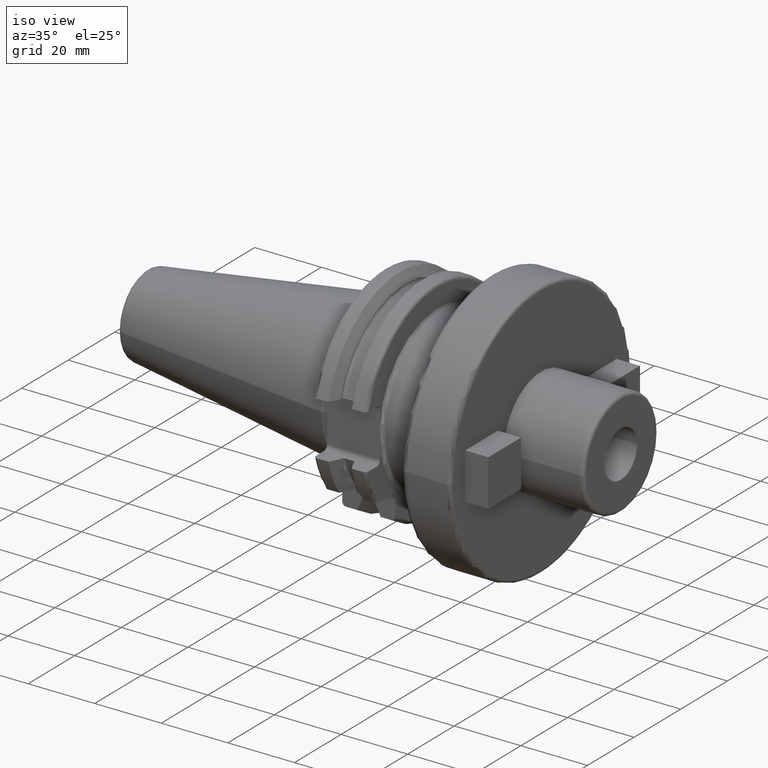
[diagram: clean part render]
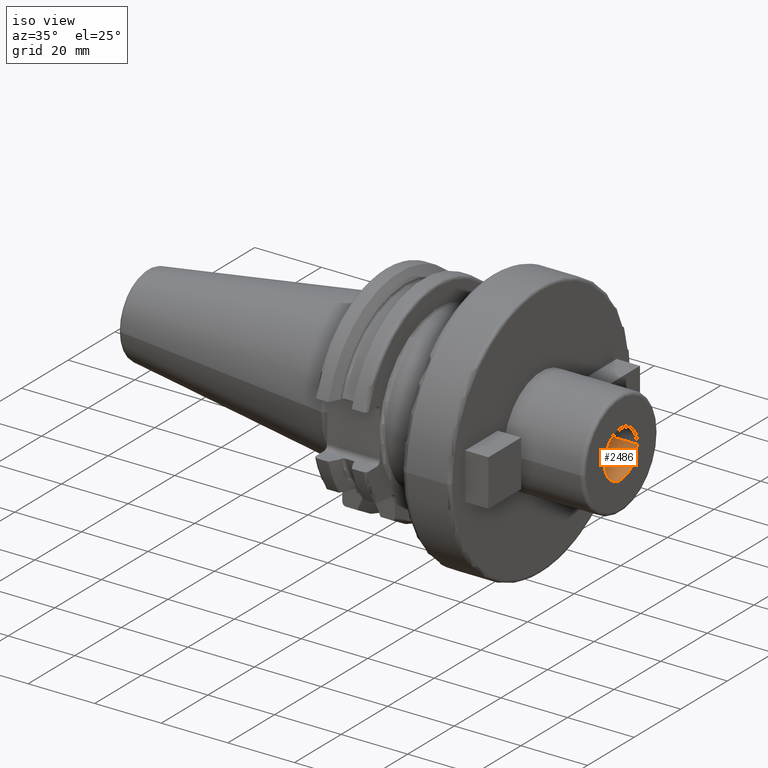
[diagram: same view with one face highlighted and labeled with its STEP entity id]
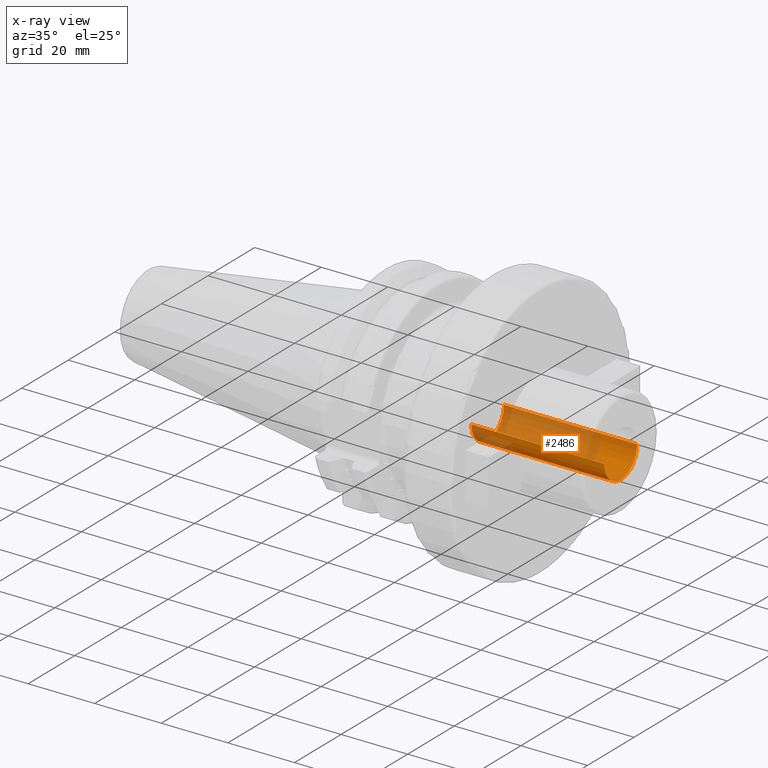
[diagram: x-ray of the same camera — body ghosted, the highlighted face saturated]
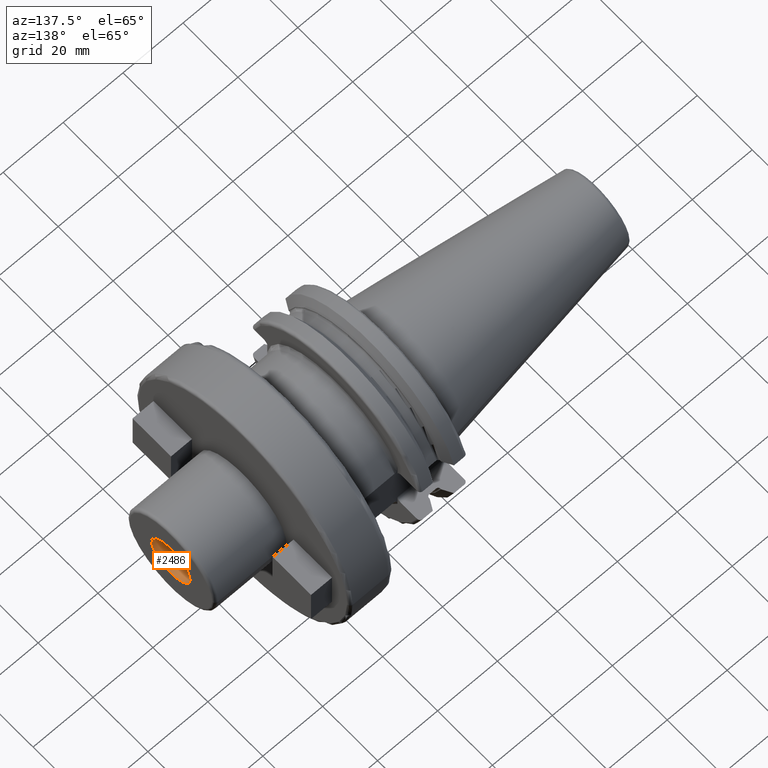
[diagram: same view with one face highlighted and labeled with its STEP entity id]
A machine part, iso view. The second image highlights one B-rep face of the part: STEP entity #2486.
The next image is the same camera in x-ray: the body ghosted, the highlighted face saturated — about 54% of this face is hidden behind the body in this view.
A second angle (auxiliary view) of the same face is appended — the face is thin or edge-on in the first view.
In plain terms, the highlighted cylindrical surface (edge-blend (fillet) strip) has radius 7 mm, axis along (1, 0, 0).
Its self-contained STEP definition (entity closure, byte-faithful):
#505=CARTESIAN_POINT('',(7.4E1,0.E0,0.E0));
#506=DIRECTION('',(1.E0,0.E0,0.E0));
#507=DIRECTION('',(0.E0,-1.E0,0.E0));
#508=AXIS2_PLACEMENT_3D('',#505,#506,#507);
#515=CARTESIAN_POINT('',(3.4E1,0.E0,0.E0));
#516=DIRECTION('',(1.E0,0.E0,0.E0));
#517=DIRECTION('',(0.E0,-1.E0,0.E0));
#518=AXIS2_PLACEMENT_3D('',#515,#516,#517);
#520=DIRECTION('',(1.E0,0.E0,0.E0));
#521=VECTOR('',#520,4.E1);
#522=CARTESIAN_POINT('',(3.4E1,7.E0,0.E0));
#523=LINE('',#522,#521);
#529=DIRECTION('',(1.E0,0.E0,0.E0));
#530=VECTOR('',#529,4.E1);
#531=CARTESIAN_POINT('',(3.4E1,-7.E0,0.E0));
#532=LINE('',#531,#530);
#1809=CARTESIAN_POINT('',(3.4E1,-7.E0,0.E0));
#1811=VERTEX_POINT('',#1809);
#1812=CARTESIAN_POINT('',(3.4E1,7.E0,0.E0));
#1813=VERTEX_POINT('',#1812);
#1814=CARTESIAN_POINT('',(7.4E1,-7.E0,0.E0));
#1815=CARTESIAN_POINT('',(7.4E1,7.E0,0.E0));
#1816=VERTEX_POINT('',#1814);
#1817=VERTEX_POINT('',#1815);
#2472=CARTESIAN_POINT('',(2.758367445015E1,0.E0,0.E0));
#2473=DIRECTION('',(1.E0,0.E0,0.E0));
#2474=DIRECTION('',(0.E0,-1.E0,0.E0));
#2475=AXIS2_PLACEMENT_3D('',#2472,#2473,#2474);
#2476=CYLINDRICAL_SURFACE('',#2475,7.E0);
#2477=ORIENTED_EDGE('',*,*,#2465,.F.);
#2479=ORIENTED_EDGE('',*,*,#2478,.F.);
#2481=ORIENTED_EDGE('',*,*,#2480,.T.);
#2483=ORIENTED_EDGE('',*,*,#2482,.T.);
#2484=EDGE_LOOP('',(#2477,#2479,#2481,#2483));
#2485=FACE_OUTER_BOUND('',#2484,.F.);
#2486=ADVANCED_FACE('',(#2485),#2476,.F.);
#509=CIRCLE('',#508,7.E0);
#519=CIRCLE('',#518,7.E0);
#2465=EDGE_CURVE('',#1816,#1817,#509,.T.);
#2478=EDGE_CURVE('',#1811,#1816,#532,.T.);
#2480=EDGE_CURVE('',#1811,#1813,#519,.T.);
#2482=EDGE_CURVE('',#1813,#1817,#523,.T.);